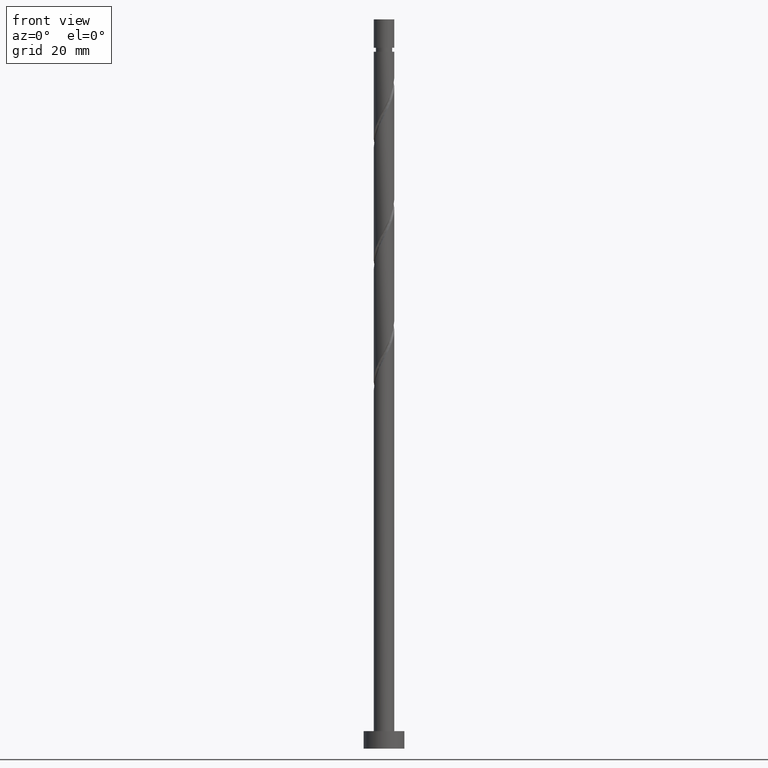
[diagram: clean part render]
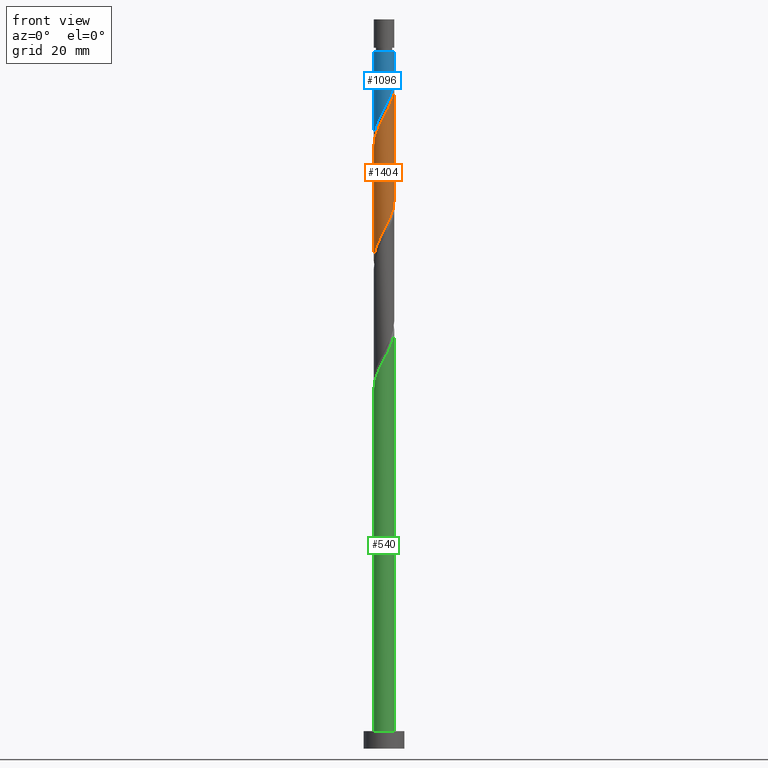
[diagram: same view with three faces highlighted in distinct colors, each labeled with its STEP entity id]
A machine part, front view with three faces highlighted in distinct colors.
Their STEP definitions:

[orange] entity #1404 — the highlighted cylindrical surface (edge-blend (fillet) strip) has radius 1.75 mm, axis along (-0, -0, -1).
#3 = CARTESIAN_POINT ( 'NONE',  ( 1.750000000000003109, 4.347999807129640933E-16, 113.5745920383712360 ) ) ;
#19 = CARTESIAN_POINT ( 'NONE',  ( -1.659843315075376413, -0.6198749181438976130, 104.3435611465081507 ) ) ;
#33 = ORIENTED_EDGE ( 'NONE', *, *, #924, .F. ) ;
#36 = CARTESIAN_POINT ( 'NONE',  ( 1.477120764882747350, -0.9784881147446428118, 111.6352278131748363 ) ) ;
#58 = DIRECTION ( 'NONE',  ( -0.000000000000000000, -0.000000000000000000, -1.000000000000000000 ) ) ;
#83 = CARTESIAN_POINT ( 'NONE',  ( -0.07661628783073755333, -1.770156684924626633, 88.71856114650812231 ) ) ;
#90 = CARTESIAN_POINT ( 'NONE',  ( -0.3482456029873172709, -1.715000000000000080, 88.19772781317482213 ) ) ;
#105 = ORIENTED_EDGE ( 'NONE', *, *, #649, .T. ) ;
#116 = CARTESIAN_POINT ( 'NONE',  ( 0.3482456029873171599, -1.715000000000003411, 109.0310611465081365 ) ) ;
#128 = VERTEX_POINT ( 'NONE', #3 ) ;
#145 = CARTESIAN_POINT ( 'NONE',  ( -0.1987628953608127635, -1.738675734985623000, 107.9893944798414935 ) ) ;
#152 = CARTESIAN_POINT ( 'NONE',  ( -0.7263150966485025783, -1.592157774964681805, 106.9477278131747937 ) ) ;
#166 = VERTEX_POINT ( 'NONE', #526 ) ;
#225 = CARTESIAN_POINT ( 'NONE',  ( -1.750000000000000000, 2.061551632690792561E-15, 83.65419692131173690 ) ) ;
#232 = EDGE_CURVE ( 'NONE', #536, #166, #814, .T. ) ;
#236 = CARTESIAN_POINT ( 'NONE',  ( -1.715000000000003411, -0.3482456029873172709, 103.8227278131748079 ) ) ;
#243 = CARTESIAN_POINT ( 'NONE',  ( -1.750000000000003109, -6.971792794190630607E-16, 103.1579253717045361 ) ) ;
#283 = CARTESIAN_POINT ( 'NONE',  ( 1.750000000000000000, 2.143131898507867804E-16, 125.0000000000000000 ) ) ;
#286 = CARTESIAN_POINT ( 'NONE',  ( 1.289788318714684356, -1.182770515741392581, 111.1143944798414935 ) ) ;
#394 = CARTESIAN_POINT ( 'NONE',  ( 1.707194785046616925, -0.4741420785523625669, 112.6768944798414793 ) ) ;
#433 = CARTESIAN_POINT ( 'NONE',  ( -1.738675734985620558, -0.1987628953608118199, 84.03106114650812231 ) ) ;
#444 = CARTESIAN_POINT ( 'NONE',  ( 0.7263150966485009130, -1.592157774964679806, 90.28106114650813652 ) ) ;
#458 = CARTESIAN_POINT ( 'NONE',  ( -0.8611653953452580446, -1.523448115906756328, 87.15606114650815073 ) ) ;
#463 = CARTESIAN_POINT ( 'NONE',  ( -1.750000000000000444, -0.09970404053125397903, 83.84370801051900912 ) ) ;
#471 = CARTESIAN_POINT ( 'NONE',  ( 1.715000000000000080, -0.3482456029873174375, 93.40606114650812231 ) ) ;
#479 = VERTEX_POINT ( 'NONE', #839 ) ;
#480 = CARTESIAN_POINT ( 'NONE',  ( 1.523448115906756328, -0.8611653953452580446, 92.36439447984146511 ) ) ;
#481 = CARTESIAN_POINT ( 'NONE',  ( -1.387052916738142905, -1.102455872546620474, 105.3852278131748506 ) ) ;
#508 = VECTOR ( 'NONE', #58, 1000.000000000000000 ) ;
#509 = CARTESIAN_POINT ( 'NONE',  ( -0.4741420785523625669, -1.707194785046616925, 107.4685611465081507 ) ) ;
#517 = CARTESIAN_POINT ( 'NONE',  ( 1.750000000000002887, -0.09970404053125975219, 113.3850809491639353 ) ) ;
#526 = CARTESIAN_POINT ( 'NONE',  ( -1.749999999999999778, 2.061551632690792561E-15, 83.65419692131173690 ) ) ;
#527 = CARTESIAN_POINT ( 'NONE',  ( -1.592157774964679806, -0.7263150966485009130, 85.07272781317482213 ) ) ;
#534 = LINE ( 'NONE', #756, #508 ) ;
#536 = VERTEX_POINT ( 'NONE', #772 ) ;
#575 = CARTESIAN_POINT ( 'NONE',  ( -0.6198749181438971689, -1.659843315075372860, 87.67689447984147932 ) ) ;
#592 = ORIENTED_EDGE ( 'NONE', *, *, #1348, .F. ) ;
#625 = CARTESIAN_POINT ( 'NONE',  ( -1.750000000000002887, -0.1758816176703630607, 103.4922299471123921 ) ) ;
#649 = EDGE_CURVE ( 'NONE', #479, #166, #534, .T. ) ;
#654 = ORIENTED_EDGE ( 'NONE', *, *, #232, .F. ) ;
#707 = CARTESIAN_POINT ( 'NONE',  ( 1.659843315075372860, -0.6198749181438975020, 92.88522781317479371 ) ) ;
#709 = CARTESIAN_POINT ( 'NONE',  ( -1.523448115906759437, -0.8611653953452587107, 104.8643944798414509 ) ) ;
#735 = DIRECTION ( 'NONE',  ( -0.000000000000000000, -0.000000000000000000, -1.000000000000000000 ) ) ;
#756 = CARTESIAN_POINT ( 'NONE',  ( -1.750000000000000000, 0.000000000000000000, 125.0000000000000000 ) ) ;
#772 = CARTESIAN_POINT ( 'NONE',  ( 1.750000000000000000, 2.578813678711391292E-15, 94.07086358797840830 ) ) ;
#814 =( BOUNDED_CURVE ( )  B_SPLINE_CURVE ( 2, ( #1430, #1099, #471, #707, #480, #1438, #1050, #1168, #444, #1296, #913, #83, #90, #575, #458, #930, #939, #1269, #527, #1004, #433, #463, #225 ),
 .UNSPECIFIED., .F., .T. ) 
 B_SPLINE_CURVE_WITH_KNOTS ( ( 3, 2, 2, 2, 2, 2, 2, 2, 2, 2, 2, 3 ),
 ( 0.5545322023138552492, 0.5625000000000000000, 0.5749999999999999556, 0.5875000000000000222, 0.5999999999999999778, 0.6125000000000000444, 0.6250000000000000000, 0.6374999999999999556, 0.6500000000000000222, 0.6624999999999999778, 0.6750000000000000444, 0.6795322023138553602 ),
 .UNSPECIFIED. ) 
 CURVE ( )  GEOMETRIC_REPRESENTATION_ITEM ( )  RATIONAL_B_SPLINE_CURVE ( ( 0.9039174447099372900, 0.9019565955404666990, 0.9090909090909150558, 0.8978984914501311199, 0.9090909090909150558, 0.8978984914501311199, 0.9090909090909150558, 0.8978984914501311199, 0.9090909090909150558, 0.8978984914501311199, 0.9090909090909150558, 0.8978984914501311199, 0.9090909090909150558, 0.8978984914501311199, 0.9090909090909150558, 0.8978984914501311199, 0.9090909090909150558, 0.8978984914501311199, 0.9090909090909150558, 0.8978984914501311199, 0.9090909090909150558, 0.9050328050005793656, 0.9039174447099371790 ) ) 
 REPRESENTATION_ITEM ( '' )  );
#839 = CARTESIAN_POINT ( 'NONE',  ( -1.750000000000003109, -6.971792794190630607E-16, 103.1579253717045361 ) ) ;
#872 = CARTESIAN_POINT ( 'NONE',  ( 1.750000000000003109, 4.347999807129640933E-16, 113.5745920383712360 ) ) ;
#884 = CARTESIAN_POINT ( 'NONE',  ( 0.000000000000000000, 0.000000000000000000, 125.0000000000000000 ) ) ;
#913 = CARTESIAN_POINT ( 'NONE',  ( 0.1987628953608116811, -1.738675734985620558, 89.23939447984146511 ) ) ;
#924 = EDGE_CURVE ( 'NONE', #479, #128, #1126, .T. ) ;
#930 = CARTESIAN_POINT ( 'NONE',  ( -1.102455872546618476, -1.387052916738139796, 86.63522781317480792 ) ) ;
#939 = CARTESIAN_POINT ( 'NONE',  ( -1.289788318714682136, -1.182770515741390138, 86.11439447984147932 ) ) ;
#953 = VECTOR ( 'NONE', #735, 1000.000000000000000 ) ;
#984 = CARTESIAN_POINT ( 'NONE',  ( 0.07661628783073691495, -1.770156684924629964, 108.5102278131748363 ) ) ;
#1004 = CARTESIAN_POINT ( 'NONE',  ( -1.707194785046613816, -0.4741420785523612347, 84.55189447984147932 ) ) ;
#1009 = FACE_OUTER_BOUND ( 'NONE', #1255, .T. ) ;
#1050 = CARTESIAN_POINT ( 'NONE',  ( 1.182770515741390138, -1.289788318714682136, 91.32272781317480792 ) ) ;
#1066 = CARTESIAN_POINT ( 'NONE',  ( 0.6198749181438973910, -1.659843315075376635, 109.5518944798415077 ) ) ;
#1099 = CARTESIAN_POINT ( 'NONE',  ( 1.749999999999999556, -0.1758816176703635048, 93.73655901257055234 ) ) ;
#1114 = CARTESIAN_POINT ( 'NONE',  ( -0.9784881147446428118, -1.477120764882747350, 106.4268944798414935 ) ) ;
#1126 =( BOUNDED_CURVE ( )  B_SPLINE_CURVE ( 2, ( #243, #625, #236, #19, #709, #481, #1440, #1114, #152, #509, #145, #984, #116, #1066, #1475, #1550, #286, #36, #1321, #394, #1308, #517, #872 ),
 .UNSPECIFIED., .F., .T. ) 
 B_SPLINE_CURVE_WITH_KNOTS ( ( 3, 2, 2, 2, 2, 2, 2, 2, 2, 2, 2, 3 ),
 ( 0.5545322023138552492, 0.5625000000000000000, 0.5749999999999999556, 0.5875000000000000222, 0.5999999999999999778, 0.6125000000000000444, 0.6250000000000000000, 0.6374999999999999556, 0.6500000000000000222, 0.6624999999999999778, 0.6750000000000000444, 0.6795322023138551382 ),
 .UNSPECIFIED. ) 
 CURVE ( )  GEOMETRIC_REPRESENTATION_ITEM ( )  RATIONAL_B_SPLINE_CURVE ( ( 0.9039174447099437293, 0.9019565955404731383, 0.9090909090909216062, 0.8978984914501375592, 0.9090909090909216062, 0.8978984914501375592, 0.9090909090909216062, 0.8978984914501375592, 0.9090909090909216062, 0.8978984914501375592, 0.9090909090909216062, 0.8978984914501375592, 0.9090909090909216062, 0.8978984914501375592, 0.9090909090909216062, 0.8978984914501375592, 0.9090909090909216062, 0.8978984914501375592, 0.9090909090909216062, 0.8978984914501375592, 0.9090909090909216062, 0.9050328050005860270, 0.9039174447099438403 ) ) 
 REPRESENTATION_ITEM ( '' )  );
#1128 = CYLINDRICAL_SURFACE ( 'NONE', #1388, 1.750000000000000000 ) ;
#1134 = DIRECTION ( 'NONE',  ( -1.000000000000000000, 0.000000000000000000, 0.000000000000000000 ) ) ;
#1168 = CARTESIAN_POINT ( 'NONE',  ( 0.9784881147446409244, -1.477120764882745352, 90.80189447984147932 ) ) ;
#1255 = EDGE_LOOP ( 'NONE', ( #592, #33, #105, #654 ) ) ;
#1256 = LINE ( 'NONE', #283, #953 ) ;
#1269 = CARTESIAN_POINT ( 'NONE',  ( -1.477120764882744908, -0.9784881147446409244, 85.59356114650815073 ) ) ;
#1296 = CARTESIAN_POINT ( 'NONE',  ( 0.4741420785523611237, -1.707194785046613816, 89.76022781317483634 ) ) ;
#1308 = CARTESIAN_POINT ( 'NONE',  ( 1.738675734985623000, -0.1987628953608128468, 113.1977278131748079 ) ) ;
#1321 = CARTESIAN_POINT ( 'NONE',  ( 1.592157774964681805, -0.7263150966485025783, 112.1560611465081365 ) ) ;
#1348 = EDGE_CURVE ( 'NONE', #128, #536, #1256, .T. ) ;
#1372 = DIRECTION ( 'NONE',  ( -0.000000000000000000, -0.000000000000000000, -1.000000000000000000 ) ) ;
#1388 = AXIS2_PLACEMENT_3D ( 'NONE', #884, #1372, #1134 ) ;
#1404 = ADVANCED_FACE ( 'NONE', ( #1009 ), #1128, .T. ) ;
#1430 = CARTESIAN_POINT ( 'NONE',  ( 1.750000000000000000, 2.578813678711391292E-15, 94.07086358797840830 ) ) ;
#1438 = CARTESIAN_POINT ( 'NONE',  ( 1.387052916738139796, -1.102455872546618920, 91.84356114650815073 ) ) ;
#1440 = CARTESIAN_POINT ( 'NONE',  ( -1.182770515741392581, -1.289788318714684356, 105.9060611465081365 ) ) ;
#1475 = CARTESIAN_POINT ( 'NONE',  ( 0.8611653953452585997, -1.523448115906759437, 110.0727278131747937 ) ) ;
#1550 = CARTESIAN_POINT ( 'NONE',  ( 1.102455872546620030, -1.387052916738142905, 110.5935611465081507 ) ) ;

[blue] entity #1096 — the highlighted cylindrical surface (edge-blend (fillet) strip) has radius 1.75 mm, axis along (-0, -0, -1).
#50 = CARTESIAN_POINT ( 'NONE',  ( -0.3482456029873172709, -1.715000000000000080, 109.0310611465081365 ) ) ;
#78 = VECTOR ( 'NONE', #897, 1000.000000000000000 ) ;
#119 = CARTESIAN_POINT ( 'NONE',  ( 1.749999999999999334, -0.1758816176703642542, 114.5698923459038809 ) ) ;
#142 = CARTESIAN_POINT ( 'NONE',  ( 1.749999999999997558, 2.143131898507866079E-16, 119.4477278131748079 ) ) ;
#156 = CARTESIAN_POINT ( 'NONE',  ( -1.592157774964679806, -0.7263150966485009130, 105.9060611465081649 ) ) ;
#171 = CARTESIAN_POINT ( 'NONE',  ( -0.6198749181438971689, -1.659843315075372860, 108.5102278131747937 ) ) ;
#174 = ORIENTED_EDGE ( 'NONE', *, *, #1209, .T. ) ;
#180 = CARTESIAN_POINT ( 'NONE',  ( -0.8611653953452580446, -1.523448115906756328, 107.9893944798414651 ) ) ;
#204 = VECTOR ( 'NONE', #1139, 1000.000000000000000 ) ;
#268 = CARTESIAN_POINT ( 'NONE',  ( 0.9784881147446409244, -1.477120764882745352, 111.6352278131747937 ) ) ;
#294 = CARTESIAN_POINT ( 'NONE',  ( -1.750000000000000000, 0.000000000000000000, 125.0000000000000000 ) ) ;
#310 = EDGE_LOOP ( 'NONE', ( #1165, #408, #174, #1219 ) ) ;
#311 = AXIS2_PLACEMENT_3D ( 'NONE', #1146, #316, #430 ) ;
#316 = DIRECTION ( 'NONE',  ( -0.000000000000000000, -0.000000000000000000, -1.000000000000000000 ) ) ;
#317 = VERTEX_POINT ( 'NONE', #142 ) ;
#390 = CARTESIAN_POINT ( 'NONE',  ( 1.182770515741390138, -1.289788318714682136, 112.1560611465081365 ) ) ;
#404 = VERTEX_POINT ( 'NONE', #1094 ) ;
#408 = ORIENTED_EDGE ( 'NONE', *, *, #975, .T. ) ;
#419 = CARTESIAN_POINT ( 'NONE',  ( -1.738675734985620558, -0.1987628953608118199, 104.8643944798414651 ) ) ;
#425 = CARTESIAN_POINT ( 'NONE',  ( -1.289788318714682136, -1.182770515741390138, 106.9477278131747937 ) ) ;
#430 = DIRECTION ( 'NONE',  ( -1.000000000000000000, 0.000000000000000000, 0.000000000000000000 ) ) ;
#491 = CARTESIAN_POINT ( 'NONE',  ( 0.1987628953608116811, -1.738675734985620558, 110.0727278131747937 ) ) ;
#493 = EDGE_CURVE ( 'NONE', #1276, #404, #1145, .T. ) ;
#528 = CARTESIAN_POINT ( 'NONE',  ( -1.707194785046613816, -0.4741420785523612347, 105.3852278131748363 ) ) ;
#544 = LINE ( 'NONE', #1021, #78 ) ;
#607 = CARTESIAN_POINT ( 'NONE',  ( 1.715000000000000080, -0.3482456029873174375, 114.2393944798414509 ) ) ;
#629 = CARTESIAN_POINT ( 'NONE',  ( 1.750000000000000000, 1.027027540649594903E-15, 114.9041969213117511 ) ) ;
#652 = LINE ( 'NONE', #294, #204 ) ;
#656 = CARTESIAN_POINT ( 'NONE',  ( -1.750000000000000000, 3.605841219360987181E-15, 104.4875302546450655 ) ) ;
#696 = CARTESIAN_POINT ( 'NONE',  ( -1.749999999999997558, 0.000000000000000000, 119.4477278131748079 ) ) ;
#723 = EDGE_CURVE ( 'NONE', #317, #1276, #544, .T. ) ;
#825 = DIRECTION ( 'NONE',  ( -1.000000000000000000, 0.000000000000000000, 0.000000000000000000 ) ) ;
#860 = CARTESIAN_POINT ( 'NONE',  ( 0.7263150966485009130, -1.592157774964679806, 111.1143944798414651 ) ) ;
#873 = CARTESIAN_POINT ( 'NONE',  ( -1.477120764882744908, -0.9784881147446409244, 106.4268944798414793 ) ) ;
#897 = DIRECTION ( 'NONE',  ( -0.000000000000000000, -0.000000000000000000, -1.000000000000000000 ) ) ;
#910 = FACE_OUTER_BOUND ( 'NONE', #310, .T. ) ;
#944 = CARTESIAN_POINT ( 'NONE',  ( 0.000000000000000000, 0.000000000000000000, 119.4477278131748079 ) ) ;
#963 = CARTESIAN_POINT ( 'NONE',  ( 1.387052916738139796, -1.102455872546618920, 112.6768944798414793 ) ) ;
#975 = EDGE_CURVE ( 'NONE', #317, #1249, #1464, .T. ) ;
#986 = CARTESIAN_POINT ( 'NONE',  ( -1.750000000000000888, -0.09970404053125322963, 104.6770413438523661 ) ) ;
#1021 = CARTESIAN_POINT ( 'NONE',  ( 1.750000000000000000, 2.143131898507867804E-16, 125.0000000000000000 ) ) ;
#1094 = CARTESIAN_POINT ( 'NONE',  ( -1.750000000000000000, 3.605841219360987181E-15, 104.4875302546450655 ) ) ;
#1096 = ADVANCED_FACE ( 'NONE', ( #910 ), #1258, .T. ) ;
#1139 = DIRECTION ( 'NONE',  ( -0.000000000000000000, -0.000000000000000000, -1.000000000000000000 ) ) ;
#1145 =( BOUNDED_CURVE ( )  B_SPLINE_CURVE ( 2, ( #1196, #119, #607, #1469, #1571, #963, #390, #268, #860, #1346, #491, #1188, #50, #171, #180, #1500, #425, #873, #156, #528, #419, #986, #656 ),
 .UNSPECIFIED., .F., .T. ) 
 B_SPLINE_CURVE_WITH_KNOTS ( ( 3, 2, 2, 2, 2, 2, 2, 2, 2, 2, 2, 3 ),
 ( 0.3045322023138552492, 0.3125000000000000000, 0.3250000000000000111, 0.3375000000000000222, 0.3499999999999999778, 0.3624999999999999889, 0.3750000000000000000, 0.3875000000000000111, 0.4000000000000000222, 0.4124999999999999778, 0.4249999999999999889, 0.4295322023138553602 ),
 .UNSPECIFIED. ) 
 CURVE ( )  GEOMETRIC_REPRESENTATION_ITEM ( )  RATIONAL_B_SPLINE_CURVE ( ( 0.9039174447099374010, 0.9019565955404668101, 0.9090909090909150558, 0.8978984914501311199, 0.9090909090909150558, 0.8978984914501311199, 0.9090909090909150558, 0.8978984914501311199, 0.9090909090909150558, 0.8978984914501311199, 0.9090909090909150558, 0.8978984914501311199, 0.9090909090909150558, 0.8978984914501311199, 0.9090909090909150558, 0.8978984914501311199, 0.9090909090909150558, 0.8978984914501311199, 0.9090909090909150558, 0.8978984914501311199, 0.9090909090909150558, 0.9050328050005792546, 0.9039174447099372900 ) ) 
 REPRESENTATION_ITEM ( '' )  );
#1146 = CARTESIAN_POINT ( 'NONE',  ( 0.000000000000000000, 0.000000000000000000, 125.0000000000000000 ) ) ;
#1165 = ORIENTED_EDGE ( 'NONE', *, *, #723, .F. ) ;
#1188 = CARTESIAN_POINT ( 'NONE',  ( -0.07661628783073755333, -1.770156684924626633, 109.5518944798414935 ) ) ;
#1196 = CARTESIAN_POINT ( 'NONE',  ( 1.750000000000000000, 1.027027540649594903E-15, 114.9041969213117511 ) ) ;
#1209 = EDGE_CURVE ( 'NONE', #1249, #404, #652, .T. ) ;
#1219 = ORIENTED_EDGE ( 'NONE', *, *, #493, .F. ) ;
#1226 = DIRECTION ( 'NONE',  ( -0.000000000000000000, -0.000000000000000000, -1.000000000000000000 ) ) ;
#1249 = VERTEX_POINT ( 'NONE', #696 ) ;
#1258 = CYLINDRICAL_SURFACE ( 'NONE', #311, 1.750000000000000000 ) ;
#1276 = VERTEX_POINT ( 'NONE', #629 ) ;
#1346 = CARTESIAN_POINT ( 'NONE',  ( 0.4741420785523611237, -1.707194785046613816, 110.5935611465081791 ) ) ;
#1414 = AXIS2_PLACEMENT_3D ( 'NONE', #944, #1226, #825 ) ;
#1464 = CIRCLE ( 'NONE', #1414, 1.749999999999997558 ) ;
#1469 = CARTESIAN_POINT ( 'NONE',  ( 1.659843315075372860, -0.6198749181438975020, 113.7185611465081365 ) ) ;
#1500 = CARTESIAN_POINT ( 'NONE',  ( -1.102455872546618476, -1.387052916738139796, 107.4685611465081507 ) ) ;
#1571 = CARTESIAN_POINT ( 'NONE',  ( 1.523448115906756328, -0.8611653953452580446, 113.1977278131747795 ) ) ;

[green] entity #540 — the highlighted cylindrical surface (edge-blend (fillet) strip) has radius 1.75 mm, axis along (-0, -0, -1).
#24 = CARTESIAN_POINT ( 'NONE',  ( 0.000000000000000000, 0.000000000000000000, 3.000000000000000000 ) ) ;
#43 = CARTESIAN_POINT ( 'NONE',  ( -1.523448115906759437, -0.8611653953452587107, 63.19772781317480792 ) ) ;
#74 = VECTOR ( 'NONE', #289, 1000.000000000000000 ) ;
#150 = CARTESIAN_POINT ( 'NONE',  ( 1.289788318714684356, -1.182770515741392581, 69.44772781317480792 ) ) ;
#164 = CARTESIAN_POINT ( 'NONE',  ( -1.750000000000000000, 0.000000000000000000, 125.0000000000000000 ) ) ;
#175 = CARTESIAN_POINT ( 'NONE',  ( -1.750000000000003997, -0.1758816176703594247, 61.82556328044572780 ) ) ;
#182 = VERTEX_POINT ( 'NONE', #1003 ) ;
#262 = AXIS2_PLACEMENT_3D ( 'NONE', #24, #280, #1235 ) ;
#275 = CARTESIAN_POINT ( 'NONE',  ( -0.1987628953608127635, -1.738675734985623000, 66.32272781317480792 ) ) ;
#278 = CARTESIAN_POINT ( 'NONE',  ( 1.750000000000000000, 2.143131898507867804E-16, 3.000000000000000000 ) ) ;
#280 = DIRECTION ( 'NONE',  ( 0.000000000000000000, 0.000000000000000000, 1.000000000000000000 ) ) ;
#289 = DIRECTION ( 'NONE',  ( -0.000000000000000000, -0.000000000000000000, -1.000000000000000000 ) ) ;
#296 = FACE_OUTER_BOUND ( 'NONE', #1422, .T. ) ;
#400 = CARTESIAN_POINT ( 'NONE',  ( 1.707194785046616925, -0.4741420785523625669, 71.01022781317482213 ) ) ;
#405 = CYLINDRICAL_SURFACE ( 'NONE', #507, 1.750000000000000000 ) ;
#416 = CARTESIAN_POINT ( 'NONE',  ( 1.477120764882747350, -0.9784881147446428118, 69.96856114650816494 ) ) ;
#505 = CARTESIAN_POINT ( 'NONE',  ( -1.387052916738142905, -1.102455872546620474, 63.71856114650814362 ) ) ;
#507 = AXIS2_PLACEMENT_3D ( 'NONE', #1484, #1117, #1359 ) ;
#512 = ORIENTED_EDGE ( 'NONE', *, *, #763, .T. ) ;
#518 = DIRECTION ( 'NONE',  ( -0.000000000000000000, -0.000000000000000000, -1.000000000000000000 ) ) ;
#530 = CARTESIAN_POINT ( 'NONE',  ( 0.6198749181438973910, -1.659843315075376635, 67.88522781317482213 ) ) ;
#533 =( BOUNDED_CURVE ( )  B_SPLINE_CURVE ( 2, ( #1016, #175, #1349, #876, #43, #505, #1239, #622, #1486, #1230, #275, #741, #1364, #530, #870, #1481, #150, #416, #1111, #400, #891, #1356, #644 ),
 .UNSPECIFIED., .F., .T. ) 
 B_SPLINE_CURVE_WITH_KNOTS ( ( 3, 2, 2, 2, 2, 2, 2, 2, 2, 2, 2, 3 ),
 ( 0.05453220231385508265, 0.06250000000000000000, 0.07499999999999995559, 0.08750000000000002220, 0.09999999999999997780, 0.1125000000000000444, 0.1250000000000000000, 0.1374999999999999556, 0.1500000000000000222, 0.1624999999999999778, 0.1750000000000000444, 0.1795322023138555267 ),
 .UNSPECIFIED. ) 
 CURVE ( )  GEOMETRIC_REPRESENTATION_ITEM ( )  RATIONAL_B_SPLINE_CURVE ( ( 0.9039174447099438403, 0.9019565955404730273, 0.9090909090909216062, 0.8978984914501375592, 0.9090909090909216062, 0.8978984914501375592, 0.9090909090909216062, 0.8978984914501375592, 0.9090909090909216062, 0.8978984914501375592, 0.9090909090909216062, 0.8978984914501375592, 0.9090909090909216062, 0.8978984914501375592, 0.9090909090909216062, 0.8978984914501375592, 0.9090909090909216062, 0.8978984914501375592, 0.9090909090909216062, 0.8978984914501375592, 0.9090909090909216062, 0.9050328050005856939, 0.9039174447099436183 ) ) 
 REPRESENTATION_ITEM ( '' )  );
#540 = ADVANCED_FACE ( 'NONE', ( #296 ), #405, .T. ) ;
#558 = EDGE_CURVE ( 'NONE', #182, #1081, #1252, .T. ) ;
#590 = CARTESIAN_POINT ( 'NONE',  ( -1.750000000000000000, 0.000000000000000000, 3.000000000000000000 ) ) ;
#606 = EDGE_CURVE ( 'NONE', #837, #960, #640, .T. ) ;
#622 = CARTESIAN_POINT ( 'NONE',  ( -0.9784881147446428118, -1.477120764882747350, 64.76022781317482213 ) ) ;
#640 = LINE ( 'NONE', #647, #1439 ) ;
#644 = CARTESIAN_POINT ( 'NONE',  ( 1.750000000000003109, 1.349379250488509398E-15, 71.90792537170455034 ) ) ;
#647 = CARTESIAN_POINT ( 'NONE',  ( 1.750000000000000000, 2.143131898507867804E-16, 125.0000000000000000 ) ) ;
#658 = ORIENTED_EDGE ( 'NONE', *, *, #1329, .F. ) ;
#718 = ORIENTED_EDGE ( 'NONE', *, *, #558, .T. ) ;
#741 = CARTESIAN_POINT ( 'NONE',  ( 0.07661628783073691495, -1.770156684924629964, 66.84356114650815073 ) ) ;
#763 = EDGE_CURVE ( 'NONE', #1081, #960, #1266, .T. ) ;
#837 = VERTEX_POINT ( 'NONE', #1174 ) ;
#870 = CARTESIAN_POINT ( 'NONE',  ( 0.8611653953452585997, -1.523448115906759437, 68.40606114650813652 ) ) ;
#876 = CARTESIAN_POINT ( 'NONE',  ( -1.659843315075376413, -0.6198749181438976130, 62.67689447984149353 ) ) ;
#891 = CARTESIAN_POINT ( 'NONE',  ( 1.738675734985623000, -0.1987628953608128468, 71.53106114650815073 ) ) ;
#960 = VERTEX_POINT ( 'NONE', #278 ) ;
#1003 = CARTESIAN_POINT ( 'NONE',  ( -1.750000000000003109, -1.611758549194608562E-15, 61.49125870503787894 ) ) ;
#1016 = CARTESIAN_POINT ( 'NONE',  ( -1.750000000000003109, -1.611758549194608760E-15, 61.49125870503787183 ) ) ;
#1081 = VERTEX_POINT ( 'NONE', #590 ) ;
#1111 = CARTESIAN_POINT ( 'NONE',  ( 1.592157774964681805, -0.7263150966485025783, 70.48939447984145090 ) ) ;
#1117 = DIRECTION ( 'NONE',  ( -0.000000000000000000, -0.000000000000000000, -1.000000000000000000 ) ) ;
#1142 = ORIENTED_EDGE ( 'NONE', *, *, #606, .F. ) ;
#1174 = CARTESIAN_POINT ( 'NONE',  ( 1.750000000000003109, 1.349379250488509398E-15, 71.90792537170455034 ) ) ;
#1230 = CARTESIAN_POINT ( 'NONE',  ( -0.4741420785523625669, -1.707194785046616925, 65.80189447984146511 ) ) ;
#1235 = DIRECTION ( 'NONE',  ( 1.000000000000000000, 0.000000000000000000, 0.000000000000000000 ) ) ;
#1239 = CARTESIAN_POINT ( 'NONE',  ( -1.182770515741392581, -1.289788318714684356, 64.23939447984146511 ) ) ;
#1252 = LINE ( 'NONE', #164, #74 ) ;
#1266 = CIRCLE ( 'NONE', #262, 1.750000000000000000 ) ;
#1329 = EDGE_CURVE ( 'NONE', #182, #837, #533, .T. ) ;
#1349 = CARTESIAN_POINT ( 'NONE',  ( -1.715000000000003411, -0.3482456029873172709, 62.15606114650814362 ) ) ;
#1356 = CARTESIAN_POINT ( 'NONE',  ( 1.750000000000003775, -0.09970404053125120347, 71.71841428249727812 ) ) ;
#1359 = DIRECTION ( 'NONE',  ( -1.000000000000000000, 0.000000000000000000, 0.000000000000000000 ) ) ;
#1364 = CARTESIAN_POINT ( 'NONE',  ( 0.3482456029873171599, -1.715000000000003411, 67.36439447984147932 ) ) ;
#1422 = EDGE_LOOP ( 'NONE', ( #1142, #658, #718, #512 ) ) ;
#1439 = VECTOR ( 'NONE', #518, 1000.000000000000000 ) ;
#1481 = CARTESIAN_POINT ( 'NONE',  ( 1.102455872546620030, -1.387052916738142905, 68.92689447984147932 ) ) ;
#1484 = CARTESIAN_POINT ( 'NONE',  ( 0.000000000000000000, 0.000000000000000000, 125.0000000000000000 ) ) ;
#1486 = CARTESIAN_POINT ( 'NONE',  ( -0.7263150966485025783, -1.592157774964681805, 65.28106114650813652 ) ) ;